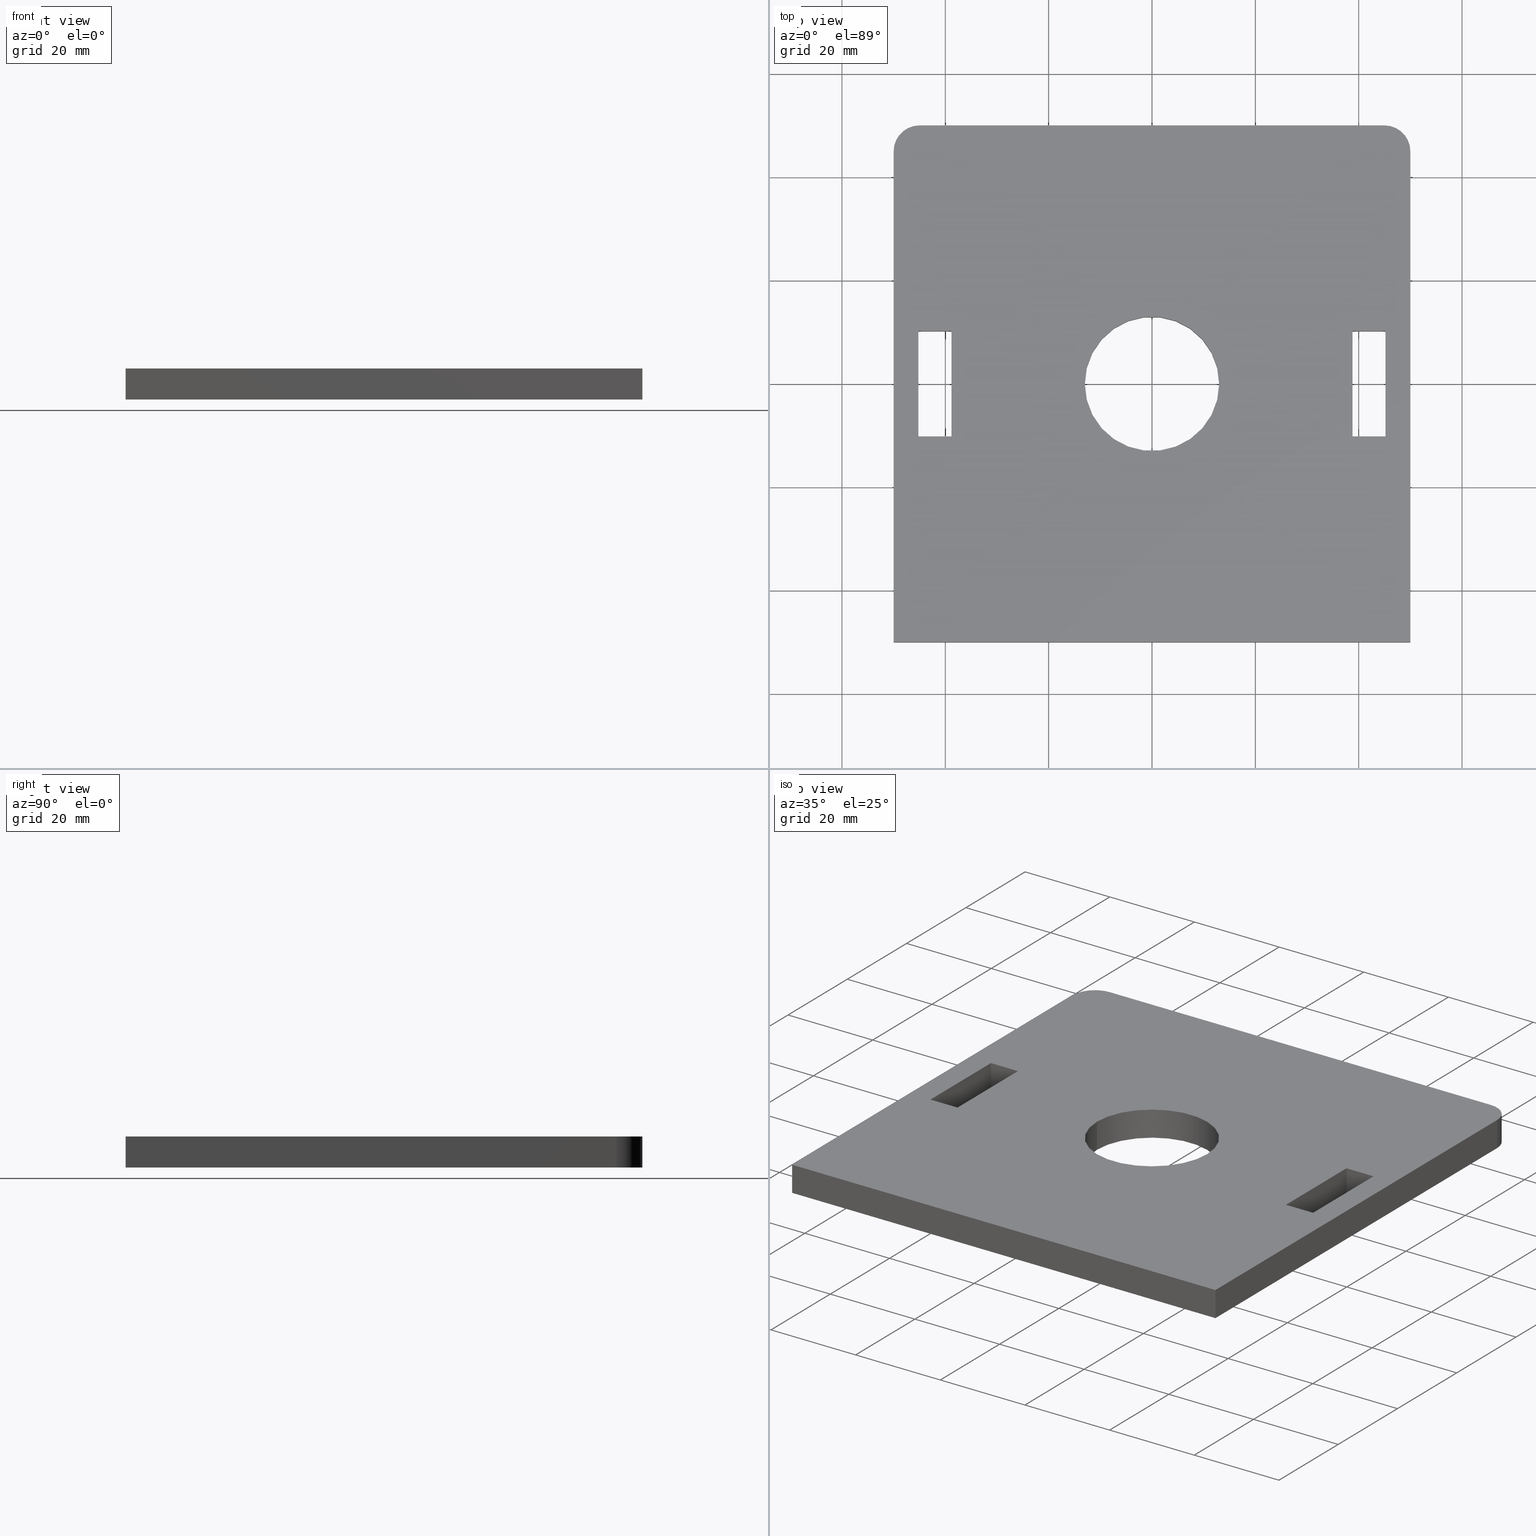
[diagram: canonical four-view strip — front | top / right | iso, engineering-drawing reading convention]
A machine part, canonical four-view strip (front | top / right | iso — engineering-drawing reading convention). The complete STEP part file that produces these views, byte-faithful:
ISO-10303-21;
HEADER;
FILE_DESCRIPTION (( 'STEP AP203' ),
    '1' );
FILE_NAME ('3997-30-15_REV_.step',
    '2026-02-22T23:23:17',
    ( '' ),
    ( '' ),
    'SwSTEP 2.0',
    'SolidWorks 2025',
    '' );
FILE_SCHEMA (( 'CONFIG_CONTROL_DESIGN' ));
ENDSEC;

DATA;
#1 = DIRECTION ( 'NONE',  ( 0.000000000000000000, 0.000000000000000000, -1.000000000000000000 ) ) ;
#2 = EDGE_LOOP ( 'NONE', ( #333, #246, #160, #266 ) ) ;
#3 = VECTOR ( 'NONE', #184, 1000.000000000000000 ) ;
#4 = VECTOR ( 'NONE', #283, 1000.000000000000000 ) ;
#5 = LINE ( 'NONE', #496, #569 ) ;
#6 = CARTESIAN_POINT ( 'NONE',  ( 45.20000000000018758, 10.20000000000043094, -6.000000000000116351 ) ) ;
#7 = ORIENTED_EDGE ( 'NONE', *, *, #529, .F. ) ;
#8 = CARTESIAN_POINT ( 'NONE',  ( 50.00000000000046185, 45.00000000000093081, -6.000000000000005329 ) ) ;
#9 = EDGE_LOOP ( 'NONE', ( #393, #513 ) ) ;
#10 = EDGE_CURVE ( 'NONE', #30, #306, #114, .T. ) ;
#11 = CARTESIAN_POINT ( 'NONE',  ( 50.00000000000065370, -50.00000000000027001, -6.000000000000338396 ) ) ;
#12 = EDGE_LOOP ( 'NONE', ( #96, #204, #353, #172, #584, #533 ) ) ;
#13 = DIRECTION ( 'NONE',  ( 0.000000000000000000, 0.000000000000000000, 1.000000000000000000 ) ) ;
#14 = LOCAL_TIME ( 10, 23, 17.00000000000000000, #653 ) ;
#15 = ORIENTED_EDGE ( 'NONE', *, *, #343, .F. ) ;
#16 = EDGE_CURVE ( 'NONE', #626, #636, #90, .T. ) ;
#17 = PLANE ( 'NONE',  #579 ) ;
#18 = ORIENTED_EDGE ( 'NONE', *, *, #117, .T. ) ;
#19 = DIRECTION ( 'NONE',  ( -1.805559322863035323E-34, -1.000000000000000000, 1.232595164407830946E-32 ) ) ;
#20 = ADVANCED_FACE ( 'NONE', ( #125 ), #224, .T. ) ;
#21 = ORIENTED_EDGE ( 'NONE', *, *, #275, .F. ) ;
#22 = DIRECTION ( 'NONE',  ( -1.000000000000000000, -1.805559322863033398E-34, -1.540743955509788682E-33 ) ) ;
#23 = VECTOR ( 'NONE', #253, 1000.000000000000000 ) ;
#24 = EDGE_LOOP ( 'NONE', ( #631, #589, #504, #628, #438, #395 ) ) ;
#25 = FACE_OUTER_BOUND ( 'NONE', #285, .T. ) ;
#26 = DIRECTION ( 'NONE',  ( 0.000000000000000000, 0.000000000000000000, 1.000000000000000000 ) ) ;
#27 = EDGE_CURVE ( 'NONE', #234, #462, #167, .T. ) ;
#28 = DIRECTION ( 'NONE',  ( -1.000000000000000000, -1.805559322863033398E-34, -1.540743955509788682E-33 ) ) ;
#29 = DIRECTION ( 'NONE',  ( 0.000000000000000000, 0.000000000000000000, 1.000000000000000000 ) ) ;
#30 = VERTEX_POINT ( 'NONE', #287 ) ;
#31 = CARTESIAN_POINT ( 'NONE',  ( 38.80000000000099902, 10.20000000000043094, 11.99999999999901235 ) ) ;
#32 = DIRECTION ( 'NONE',  ( 1.805559322863035323E-34, 1.000000000000000000, -0.000000000000000000 ) ) ;
#33 = VECTOR ( 'NONE', #319, 1000.000000000000000 ) ;
#34 = VECTOR ( 'NONE', #48, 1000.000000000000000 ) ;
#35 = ORIENTED_EDGE ( 'NONE', *, *, #165, .F. ) ;
#36 = DIRECTION ( 'NONE',  ( -1.000000000000000000, -1.805559322863033398E-34, 0.000000000000000000 ) ) ;
#37 = ADVANCED_FACE ( 'NONE', ( #578 ), #177, .T. ) ;
#38 = CARTESIAN_POINT ( 'NONE',  ( 13.00000000000000178, 2.347227119721943696E-33, -6.000000000000227374 ) ) ;
#39 = EDGE_LOOP ( 'NONE', ( #555, #389, #288, #156 ) ) ;
#40 = PERSON_AND_ORGANIZATION ( #376, #337 ) ;
#41 = CARTESIAN_POINT ( 'NONE',  ( 5.559246639419423985E-14, 10.19999999999998685, -6.000000000000227374 ) ) ;
#42 = EDGE_LOOP ( 'NONE', ( #436, #498, #62, #611 ) ) ;
#43 = PERSON_AND_ORGANIZATION ( #376, #337 ) ;
#44 = DIRECTION ( 'NONE',  ( 1.805559322863033398E-34, -1.000000000000000000, 1.232595164407830946E-32 ) ) ;
#45 = ORIENTED_EDGE ( 'NONE', *, *, #47, .T. ) ;
#46 = AXIS2_PLACEMENT_3D ( 'NONE', #360, #309, #458 ) ;
#47 = EDGE_CURVE ( 'NONE', #197, #599, #535, .T. ) ;
#48 = DIRECTION ( 'NONE',  ( -1.805559322863035323E-34, -1.000000000000000000, 1.232595164407830946E-32 ) ) ;
#49 = CARTESIAN_POINT ( 'NONE',  ( -45.19999999999968310, -10.20000000000020890, 11.99999999999990052 ) ) ;
#50 = VERTEX_POINT ( 'NONE', #586 ) ;
#51 = EDGE_CURVE ( 'NONE', #511, #636, #86, .T. ) ;
#52 = PERSON_AND_ORGANIZATION_ROLE ( 'creator' ) ;
#53 = CARTESIAN_POINT ( 'NONE',  ( 38.80000000000000426, -10.19999999999998685, -5.999999999999894307 ) ) ;
#54 = VERTEX_POINT ( 'NONE', #179 ) ;
#55 = PERSON_AND_ORGANIZATION ( #376, #337 ) ;
#56 = LINE ( 'NONE', #304, #33 ) ;
#57 = ORIENTED_EDGE ( 'NONE', *, *, #577, .T. ) ;
#58 = VECTOR ( 'NONE', #598, 1000.000000000000000 ) ;
#59 = LOCAL_TIME ( 10, 23, 17.00000000000000000, #201 ) ;
#60 = LINE ( 'NONE', #546, #387 ) ;
#61 = ADVANCED_FACE ( 'NONE', ( #382 ), #434, .T. ) ;
#62 = ORIENTED_EDGE ( 'NONE', *, *, #16, .T. ) ;
#63 = DIRECTION ( 'NONE',  ( 0.000000000000000000, 0.000000000000000000, 1.000000000000000000 ) ) ;
#64 = ORIENTED_EDGE ( 'NONE', *, *, #366, .F. ) ;
#65 = CARTESIAN_POINT ( 'NONE',  ( 38.80000000000041638, 10.20000000000065299, -5.551115123125782702E-13 ) ) ;
#66 = ORIENTED_EDGE ( 'NONE', *, *, #493, .F. ) ;
#67 = EDGE_CURVE ( 'NONE', #386, #566, #277, .T. ) ;
#68 = AXIS2_PLACEMENT_3D ( 'NONE', #499, #44, #402 ) ;
#69 = VECTOR ( 'NONE', #176, 1000.000000000000000 ) ;
#70 = DIRECTION ( 'NONE',  ( -1.000000000000000000, 0.000000000000000000, 0.000000000000000000 ) ) ;
#71 = EDGE_LOOP ( 'NONE', ( #150, #133, #547, #7 ) ) ;
#72 = FACE_OUTER_BOUND ( 'NONE', #39, .T. ) ;
#73 = ORIENTED_EDGE ( 'NONE', *, *, #221, .T. ) ;
#74 = CARTESIAN_POINT ( 'NONE',  ( -38.79999999999977689, 10.20000000000009877, 11.99999999999923261 ) ) ;
#75 = ORIENTED_EDGE ( 'NONE', *, *, #493, .T. ) ;
#76 = CARTESIAN_POINT ( 'NONE',  ( 45.20000000000051443, -10.20000000000043094, 11.99999999999901235 ) ) ;
#77 = AXIS2_PLACEMENT_3D ( 'NONE', #521, #313, #63 ) ;
#78 = AXIS2_PLACEMENT_3D ( 'NONE', #85, #273, #22 ) ;
#79 = CARTESIAN_POINT ( 'NONE',  ( -38.79999999999989058, 10.19999999999976481, -3.339342691255353657E-13 ) ) ;
#80 = EDGE_CURVE ( 'NONE', #93, #234, #532, .T. ) ;
#81 = FACE_BOUND ( 'NONE', #2, .T. ) ;
#82 = CARTESIAN_POINT ( 'NONE',  ( -44.99999999999970868, 45.00000000000004263, -6.000000000000560441 ) ) ;
#83 = CC_DESIGN_PERSON_AND_ORGANIZATION_ASSIGNMENT ( #205, #401, ( #420 ) ) ;
#84 = EDGE_LOOP ( 'NONE', ( #573, #258, #563, #651 ) ) ;
#85 = CARTESIAN_POINT ( 'NONE',  ( -38.79999999999977689, 10.20000000000009877, 11.99999999999923261 ) ) ;
#86 = LINE ( 'NONE', #38, #294 ) ;
#87 = ADVANCED_FACE ( 'NONE', ( #477 ), #138, .F. ) ;
#88 = LINE ( 'NONE', #381, #4 ) ;
#89 = DIRECTION ( 'NONE',  ( 1.000000000000000000, 1.805559322863033398E-34, 1.540743955509788682E-33 ) ) ;
#90 = CIRCLE ( 'NONE', #323, 13.00000000000000178 ) ;
#91 = EDGE_LOOP ( 'NONE', ( #464, #648, #250, #111 ) ) ;
#92 = CARTESIAN_POINT ( 'NONE',  ( -38.79999999999939320, -10.19999999999976481, -5.999999999999672262 ) ) ;
#93 = VERTEX_POINT ( 'NONE', #229 ) ;
#94 = COORDINATED_UNIVERSAL_TIME_OFFSET ( 10, 0, .AHEAD. ) ;
#95 = CARTESIAN_POINT ( 'NONE',  ( -49.99999999999965894, -50.00000000000071054, -5.999999999999561240 ) ) ;
#96 = ORIENTED_EDGE ( 'NONE', *, *, #10, .T. ) ;
#97 = CARTESIAN_POINT ( 'NONE',  ( 0.000000000000000000, 0.000000000000000000, 0.000000000000000000 ) ) ;
#98 = CARTESIAN_POINT ( 'NONE',  ( -38.79999999999983373, -10.19999999999987494, 11.99999999999923261 ) ) ;
#99 = EDGE_CURVE ( 'NONE', #306, #153, #335, .T. ) ;
#100 = EDGE_LOOP ( 'NONE', ( #15, #487, #45, #644 ) ) ;
#101 = AXIS2_PLACEMENT_3D ( 'NONE', #460, #13, #310 ) ;
#102 = AXIS2_PLACEMENT_3D ( 'NONE', #97, #244, #236 ) ;
#103 =( NAMED_UNIT ( * ) SI_UNIT ( $, .STERADIAN. ) SOLID_ANGLE_UNIT ( ) );
#104 = LINE ( 'NONE', #293, #112 ) ;
#105 = VERTEX_POINT ( 'NONE', #128 ) ;
#106 = APPROVAL_ROLE ( '' ) ;
#107 = CARTESIAN_POINT ( 'NONE',  ( 0.000000000000000000, 0.000000000000000000, 0.000000000000000000 ) ) ;
#108 = ORIENTED_EDGE ( 'NONE', *, *, #27, .T. ) ;
#109 = EDGE_CURVE ( 'NONE', #281, #599, #322, .T. ) ;
#110 = DIRECTION ( 'NONE',  ( 1.000000000000000000, 1.805559322863033398E-34, 1.540743955509788682E-33 ) ) ;
#111 = ORIENTED_EDGE ( 'NONE', *, *, #602, .T. ) ;
#112 = VECTOR ( 'NONE', #497, 1000.000000000000000 ) ;
#113 = CARTESIAN_POINT ( 'NONE',  ( -50.00000000000009948, 45.00000000000070344, -5.999999999999561240 ) ) ;
#114 = LINE ( 'NONE', #416, #231 ) ;
#115 = LINE ( 'NONE', #358, #506 ) ;
#116 = VERTEX_POINT ( 'NONE', #79 ) ;
#117 = EDGE_CURVE ( 'NONE', #519, #478, #528, .T. ) ;
#118 = CARTESIAN_POINT ( 'NONE',  ( 38.80000000000055849, -10.20000000000020890, 11.99999999999978861 ) ) ;
#119 = ORIENTED_EDGE ( 'NONE', *, *, #80, .F. ) ;
#120 = VECTOR ( 'NONE', #550, 1000.000000000000000 ) ;
#121 = AXIS2_PLACEMENT_3D ( 'NONE', #76, #36, #629 ) ;
#122 = DIRECTION ( 'NONE',  ( 0.000000000000000000, 0.000000000000000000, 1.000000000000000000 ) ) ;
#123 = ORIENTED_EDGE ( 'NONE', *, *, #213, .F. ) ;
#124 = DIRECTION ( 'NONE',  ( 1.805559322863035323E-34, 1.000000000000000000, -1.232595164407830946E-32 ) ) ;
#125 = FACE_OUTER_BOUND ( 'NONE', #409, .T. ) ;
#126 = ADVANCED_FACE ( 'NONE', ( #474 ), #489, .T. ) ;
#127 = PLANE ( 'NONE',  #121 ) ;
#128 = CARTESIAN_POINT ( 'NONE',  ( 38.80000000000041638, 10.20000000000065299, -5.551115123125782702E-13 ) ) ;
#129 = FACE_OUTER_BOUND ( 'NONE', #560, .T. ) ;
#130 = VECTOR ( 'NONE', #190, 1000.000000000000000 ) ;
#131 = AXIS2_PLACEMENT_3D ( 'NONE', #31, #433, #379 ) ;
#132 = DIRECTION ( 'NONE',  ( 0.000000000000000000, 0.000000000000000000, 1.000000000000000000 ) ) ;
#133 = ORIENTED_EDGE ( 'NONE', *, *, #642, .F. ) ;
#134 = DIRECTION ( 'NONE',  ( 1.000000000000000000, 1.805559322863033398E-34, 0.000000000000000000 ) ) ;
#135 = CARTESIAN_POINT ( 'NONE',  ( 5.559246639419423985E-14, 10.19999999999998685, -6.000000000000227374 ) ) ;
#136 = ADVANCED_FACE ( 'NONE', ( #427 ), #425, .T. ) ;
#137 = DIRECTION ( 'NONE',  ( 1.540743955509788682E-33, 2.781904613015565710E-67, -1.000000000000000000 ) ) ;
#138 = CYLINDRICAL_SURFACE ( 'NONE', #536, 13.00000000000000178 ) ;
#139 = EDGE_LOOP ( 'NONE', ( #269, #351, #318, #551 ) ) ;
#140 = CC_DESIGN_DATE_AND_TIME_ASSIGNMENT ( #541, #396, ( #300 ) ) ;
#141 = DIRECTION ( 'NONE',  ( -1.000000000000000000, -1.805559322863033398E-34, -1.540743955509788682E-33 ) ) ;
#142 = CARTESIAN_POINT ( 'NONE',  ( -49.99999999999965894, -50.00000000000071054, -5.999999999999561240 ) ) ;
#143 = VECTOR ( 'NONE', #268, 1000.000000000000000 ) ;
#144 = APPROVAL_PERSON_ORGANIZATION ( #363, #607, #214 ) ;
#145 = APPROVAL_STATUS ( 'not_yet_approved' ) ;
#146 = CARTESIAN_POINT ( 'NONE',  ( 38.80000000000028137, 2.220446049250313081E-13, -6.000000000000560441 ) ) ;
#147 = DATE_AND_TIME ( #597, #242 ) ;
#148 = EDGE_CURVE ( 'NONE', #50, #540, #380, .T. ) ;
#149 = DIRECTION ( 'NONE',  ( -1.805559322863035323E-34, -1.000000000000000000, 1.232595164407830946E-32 ) ) ;
#150 = ORIENTED_EDGE ( 'NONE', *, *, #459, .F. ) ;
#151 = DIRECTION ( 'NONE',  ( 0.000000000000000000, 0.000000000000000000, 1.000000000000000000 ) ) ;
#152 = VECTOR ( 'NONE', #89, 1000.000000000000000 ) ;
#153 = VERTEX_POINT ( 'NONE', #329 ) ;
#154 = APPROVAL_STATUS ( 'not_yet_approved' ) ;
#155 = LINE ( 'NONE', #447, #120 ) ;
#156 = ORIENTED_EDGE ( 'NONE', *, *, #183, .F. ) ;
#157 = EDGE_CURVE ( 'NONE', #519, #442, #235, .T. ) ;
#158 = CARTESIAN_POINT ( 'NONE',  ( 13.00000000000000178, 2.347227119721943696E-33, 2.002967142162725561E-32 ) ) ;
#159 = DIRECTION ( 'NONE',  ( 0.000000000000000000, 0.000000000000000000, -1.000000000000000000 ) ) ;
#160 = ORIENTED_EDGE ( 'NONE', *, *, #423, .T. ) ;
#161 = CARTESIAN_POINT ( 'NONE',  ( -45.19999999999968310, -10.20000000000020890, 11.99999999999990052 ) ) ;
#162 = VERTEX_POINT ( 'NONE', #92 ) ;
#163 = VECTOR ( 'NONE', #559, 1000.000000000000000 ) ;
#164 = PRODUCT_DEFINITION_SHAPE ( 'NONE', 'NONE',  #300 ) ;
#165 = EDGE_CURVE ( 'NONE', #580, #442, #543, .T. ) ;
#166 = LINE ( 'NONE', #113, #163 ) ;
#167 = LINE ( 'NONE', #41, #483 ) ;
#168 = FACE_OUTER_BOUND ( 'NONE', #24, .T. ) ;
#169 = ORIENTED_EDGE ( 'NONE', *, *, #529, .T. ) ;
#170 = MANIFOLD_SOLID_BREP ( 'Fillet1', #397 ) ;
#171 = CARTESIAN_POINT ( 'NONE',  ( -38.80000000000005400, -10.19999999999987494, -2.220446049250313081E-13 ) ) ;
#172 = ORIENTED_EDGE ( 'NONE', *, *, #501, .T. ) ;
#173 = VECTOR ( 'NONE', #588, 1000.000000000000000 ) ;
#174 = DIRECTION ( 'NONE',  ( 1.000000000000000000, 1.805559322863033398E-34, 1.540743955509788682E-33 ) ) ;
#175 = DIRECTION ( 'NONE',  ( 0.000000000000000000, 0.000000000000000000, 1.000000000000000000 ) ) ;
#176 = DIRECTION ( 'NONE',  ( -1.805559322863035323E-34, -1.000000000000000000, 1.232595164407830946E-32 ) ) ;
#177 = CYLINDRICAL_SURFACE ( 'NONE', #548, 4.999999999999997335 ) ;
#178 = FACE_OUTER_BOUND ( 'NONE', #139, .T. ) ;
#179 = CARTESIAN_POINT ( 'NONE',  ( -13.00000000000000178, 1.592040838891559293E-15, -6.000000000000227374 ) ) ;
#180 = AXIS2_PLACEMENT_3D ( 'NONE', #486, #630, #634 ) ;
#181 = DIRECTION ( 'NONE',  ( 0.000000000000000000, 0.000000000000000000, 1.000000000000000000 ) ) ;
#182 = CIRCLE ( 'NONE', #254, 13.00000000000000178 ) ;
#183 = EDGE_CURVE ( 'NONE', #516, #162, #554, .T. ) ;
#184 = DIRECTION ( 'NONE',  ( 0.000000000000000000, 0.000000000000000000, -1.000000000000000000 ) ) ;
#185 = CARTESIAN_POINT ( 'NONE',  ( 50.00000000000065370, -50.00000000000027001, -6.000000000000338396 ) ) ;
#186 = DIRECTION ( 'NONE',  ( -0.000000000000000000, -0.000000000000000000, 1.000000000000000000 ) ) ;
#187 = APPROVAL ( #145, 'UNSPECIFIED' ) ;
#188 = CARTESIAN_POINT ( 'NONE',  ( -49.99999999999965894, 45.00000000000070344, -8.881784197001252323E-13 ) ) ;
#189 = CARTESIAN_POINT ( 'NONE',  ( 45.00000000000109424, 44.99999999999992895, -1.110223024625156540E-13 ) ) ;
#190 = DIRECTION ( 'NONE',  ( 1.805559322863035323E-34, 1.000000000000000000, -1.232595164407830946E-32 ) ) ;
#191 = VECTOR ( 'NONE', #413, 1000.000000000000000 ) ;
#192 = LOCAL_TIME ( 10, 23, 17.00000000000000000, #94 ) ;
#193 = ORIENTED_EDGE ( 'NONE', *, *, #357, .F. ) ;
#194 = EDGE_CURVE ( 'NONE', #162, #50, #451, .T. ) ;
#195 = SECURITY_CLASSIFICATION_LEVEL ( 'unclassified' ) ;
#196 = DIRECTION ( 'NONE',  ( 1.000000000000000000, 1.805559322863033398E-34, 1.540743955509788682E-33 ) ) ;
#197 = VERTEX_POINT ( 'NONE', #257 ) ;
#198 = APPROVAL ( #154, 'UNSPECIFIED' ) ;
#199 = CARTESIAN_POINT ( 'NONE',  ( -45.19999999999957652, 10.19999999999965468, -5.551115123125782702E-13 ) ) ;
#200 = VERTEX_POINT ( 'NONE', #606 ) ;
#201 = COORDINATED_UNIVERSAL_TIME_OFFSET ( 10, 0, .AHEAD. ) ;
#202 = LINE ( 'NONE', #49, #272 ) ;
#203 = EDGE_CURVE ( 'NONE', #462, #281, #392, .T. ) ;
#204 = ORIENTED_EDGE ( 'NONE', *, *, #99, .T. ) ;
#205 = PERSON_AND_ORGANIZATION ( #376, #337 ) ;
#206 = PLANE ( 'NONE',  #68 ) ;
#207 = ORIENTED_EDGE ( 'NONE', *, *, #443, .F. ) ;
#208 = CARTESIAN_POINT ( 'NONE',  ( 38.80000000000066507, -10.20000000000031903, -5.551115123125782702E-13 ) ) ;
#209 = ORIENTED_EDGE ( 'NONE', *, *, #47, .F. ) ;
#210 = DIRECTION ( 'NONE',  ( 1.805559322863035323E-34, 1.000000000000000000, -1.232595164407830946E-32 ) ) ;
#211 = VERTEX_POINT ( 'NONE', #290 ) ;
#212 = VECTOR ( 'NONE', #28, 1000.000000000000000 ) ;
#213 = EDGE_CURVE ( 'NONE', #442, #30, #60, .T. ) ;
#214 = APPROVAL_ROLE ( '' ) ;
#215 = CARTESIAN_POINT ( 'NONE',  ( -49.99999999999993605, -50.00000000000049027, -4.440892098500626162E-13 ) ) ;
#216 = ORIENTED_EDGE ( 'NONE', *, *, #623, .T. ) ;
#217 = CARTESIAN_POINT ( 'NONE',  ( 8.131516293641283255E-17, 0.000000000000000000, -6.000000000000227374 ) ) ;
#218 = ORIENTED_EDGE ( 'NONE', *, *, #308, .F. ) ;
#219 = DIRECTION ( 'NONE',  ( 0.000000000000000000, 0.000000000000000000, 1.000000000000000000 ) ) ;
#220 = DIRECTION ( 'NONE',  ( 1.805559322863035323E-34, 1.000000000000000000, -1.232595164407830946E-32 ) ) ;
#221 = EDGE_CURVE ( 'NONE', #478, #30, #155, .T. ) ;
#222 = VECTOR ( 'NONE', #110, 1000.000000000000000 ) ;
#223 = LINE ( 'NONE', #476, #69 ) ;
#224 = PLANE ( 'NONE',  #46 ) ;
#225 = CARTESIAN_POINT ( 'NONE',  ( -45.19999999999996021, 10.19999999999987494, -5.999999999999894307 ) ) ;
#226 = DIRECTION ( 'NONE',  ( 0.000000000000000000, 0.000000000000000000, 1.000000000000000000 ) ) ;
#227 = EDGE_CURVE ( 'NONE', #386, #162, #355, .T. ) ;
#228 = FACE_BOUND ( 'NONE', #414, .T. ) ;
#229 = CARTESIAN_POINT ( 'NONE',  ( 45.20000000000071338, 10.19999999999998685, -9.992007221626408864E-13 ) ) ;
#230 = ORIENTED_EDGE ( 'NONE', *, *, #649, .T. ) ;
#231 = VECTOR ( 'NONE', #220, 1000.000000000000000 ) ;
#232 = CARTESIAN_POINT ( 'NONE',  ( -45.19999999999973994, -10.20000000000031903, -6.000000000000782485 ) ) ;
#233 = CARTESIAN_POINT ( 'NONE',  ( -45.19999999999968310, -10.20000000000031903, -9.992007221626408864E-13 ) ) ;
#234 = VERTEX_POINT ( 'NONE', #6 ) ;
#235 = LINE ( 'NONE', #142, #461 ) ;
#236 = DIRECTION ( 'NONE',  ( 1.000000000000000000, 0.000000000000000000, 0.000000000000000000 ) ) ;
#237 = CARTESIAN_POINT ( 'NONE',  ( 45.20000000000051443, -10.20000000000043094, 11.99999999999901235 ) ) ;
#238 = EDGE_CURVE ( 'NONE', #636, #626, #182, .T. ) ;
#239 = DATE_AND_TIME ( #289, #192 ) ;
#240 = CARTESIAN_POINT ( 'NONE',  ( 50.00000000000018474, 45.00000000000070344, -5.551115123125782702E-13 ) ) ;
#241 = AXIS2_PLACEMENT_3D ( 'NONE', #455, #565, #70 ) ;
#242 = LOCAL_TIME ( 10, 23, 17.00000000000000000, #391 ) ;
#243 = ORIENTED_EDGE ( 'NONE', *, *, #51, .T. ) ;
#244 = DIRECTION ( 'NONE',  ( 0.000000000000000000, 0.000000000000000000, 1.000000000000000000 ) ) ;
#245 = DIRECTION ( 'NONE',  ( 0.000000000000000000, 0.000000000000000000, 1.000000000000000000 ) ) ;
#246 = ORIENTED_EDGE ( 'NONE', *, *, #67, .T. ) ;
#247 = EDGE_CURVE ( 'NONE', #105, #462, #650, .T. ) ;
#248 = CALENDAR_DATE ( 2026, 23, 2 ) ;
#249 = CARTESIAN_POINT ( 'NONE',  ( 45.20000000000071338, 10.19999999999998685, -9.992007221626408864E-13 ) ) ;
#250 = ORIENTED_EDGE ( 'NONE', *, *, #148, .T. ) ;
#251 = PERSON_AND_ORGANIZATION_ROLE ( 'creator' ) ;
#252 = CC_DESIGN_DATE_AND_TIME_ASSIGNMENT ( #147, #609, ( #420 ) ) ;
#253 = DIRECTION ( 'NONE',  ( -1.805559322863035323E-34, -1.000000000000000000, 1.232595164407830946E-32 ) ) ;
#254 = AXIS2_PLACEMENT_3D ( 'NONE', #107, #151, #643 ) ;
#255 = ORIENTED_EDGE ( 'NONE', *, *, #227, .F. ) ;
#256 = APPROVAL_DATE_TIME ( #411, #607 ) ;
#257 = CARTESIAN_POINT ( 'NONE',  ( 45.20000000000054285, -10.19999999999987494, -1.000068083900629290E-12 ) ) ;
#258 = ORIENTED_EDGE ( 'NONE', *, *, #383, .F. ) ;
#259 = CARTESIAN_POINT ( 'NONE',  ( 38.80000000000053006, 10.20000000000031903, -5.999999999999672262 ) ) ;
#260 = ORIENTED_EDGE ( 'NONE', *, *, #203, .T. ) ;
#261 = ADVANCED_FACE ( 'NONE', ( #388 ), #206, .T. ) ;
#262 = FACE_BOUND ( 'NONE', #9, .T. ) ;
#263 = VECTOR ( 'NONE', #507, 1000.000000000000000 ) ;
#264 = AXIS2_PLACEMENT_3D ( 'NONE', #468, #328, #276 ) ;
#265 = FACE_OUTER_BOUND ( 'NONE', #278, .T. ) ;
#266 = ORIENTED_EDGE ( 'NONE', *, *, #267, .T. ) ;
#267 = EDGE_CURVE ( 'NONE', #320, #116, #342, .T. ) ;
#268 = DIRECTION ( 'NONE',  ( 0.000000000000000000, 0.000000000000000000, -1.000000000000000000 ) ) ;
#269 = ORIENTED_EDGE ( 'NONE', *, *, #247, .F. ) ;
#270 = CARTESIAN_POINT ( 'NONE',  ( -49.99999999999965894, -50.00000000000071054, -5.999999999999561240 ) ) ;
#271 = ORIENTED_EDGE ( 'NONE', *, *, #592, .F. ) ;
#272 = VECTOR ( 'NONE', #159, 1000.000000000000000 ) ;
#273 = DIRECTION ( 'NONE',  ( 1.805559322863033398E-34, -1.000000000000000000, 1.232595164407830946E-32 ) ) ;
#274 = CARTESIAN_POINT ( 'NONE',  ( -50.00000000000027001, 49.99999999999982236, -6.000000000001226574 ) ) ;
#275 = EDGE_CURVE ( 'NONE', #320, #540, #104, .T. ) ;
#276 = DIRECTION ( 'NONE',  ( -1.000000000000000000, -3.358424649491100554E-13, 0.000000000000000000 ) ) ;
#277 = LINE ( 'NONE', #233, #408 ) ;
#278 = EDGE_LOOP ( 'NONE', ( #64, #330, #243, #494 ) ) ;
#279 = CARTESIAN_POINT ( 'NONE',  ( 13.00000000000000178, 2.347227119721943696E-33, -6.000000000000227374 ) ) ;
#280 = CARTESIAN_POINT ( 'NONE',  ( 8.131516293641283255E-17, 0.000000000000000000, -6.000000000000227374 ) ) ;
#281 = VERTEX_POINT ( 'NONE', #53 ) ;
#282 = VECTOR ( 'NONE', #210, 1000.000000000000000 ) ;
#283 = DIRECTION ( 'NONE',  ( 1.805559322863035323E-34, 1.000000000000000000, -1.232595164407830946E-32 ) ) ;
#284 = CARTESIAN_POINT ( 'NONE',  ( -38.79999999999983373, -10.19999999999987494, 11.99999999999923261 ) ) ;
#285 = EDGE_LOOP ( 'NONE', ( #207, #608, #454, #448 ) ) ;
#286 = EDGE_CURVE ( 'NONE', #54, #511, #429, .T. ) ;
#287 = CARTESIAN_POINT ( 'NONE',  ( 50.00000000000065370, -50.00000000000027001, -9.992007221626408864E-13 ) ) ;
#288 = ORIENTED_EDGE ( 'NONE', *, *, #227, .T. ) ;
#289 = CALENDAR_DATE ( 2026, 23, 2 ) ;
#290 = CARTESIAN_POINT ( 'NONE',  ( -44.99999999999987210, 50.00000000000059686, -3.330669073875469621E-13 ) ) ;
#291 = ORIENTED_EDGE ( 'NONE', *, *, #157, .T. ) ;
#292 = LINE ( 'NONE', #600, #34 ) ;
#293 = CARTESIAN_POINT ( 'NONE',  ( -45.19999999999934914, 10.20000000000009877, 11.99999999999923261 ) ) ;
#294 = VECTOR ( 'NONE', #132, 1000.000000000000000 ) ;
#295 = ORIENTED_EDGE ( 'NONE', *, *, #311, .T. ) ;
#296 = ADVANCED_FACE ( 'NONE', ( #610 ), #352, .T. ) ;
#297 = APPROVAL_DATE_TIME ( #549, #187 ) ;
#298 = DIRECTION ( 'NONE',  ( 0.000000000000000000, 0.000000000000000000, -1.000000000000000000 ) ) ;
#299 = ORIENTED_EDGE ( 'NONE', *, *, #194, .F. ) ;
#300 = PRODUCT_DEFINITION ( 'UNKNOWN', '', #440, #564 ) ;
#301 = PERSON_AND_ORGANIZATION_ROLE ( 'design_owner' ) ;
#302 = CARTESIAN_POINT ( 'NONE',  ( -44.99999999999976552, 50.00000000000071054, -6.000000000001004530 ) ) ;
#303 = ORIENTED_EDGE ( 'NONE', *, *, #80, .T. ) ;
#304 = CARTESIAN_POINT ( 'NONE',  ( -49.99999999999970868, 49.99999999999993605, -1.110223024625156540E-13 ) ) ;
#305 = AXIS2_PLACEMENT_3D ( 'NONE', #510, #219, #624 ) ;
#306 = VERTEX_POINT ( 'NONE', #240 ) ;
#307 = DIRECTION ( 'NONE',  ( 0.000000000000000000, 0.000000000000000000, -1.000000000000000000 ) ) ;
#308 = EDGE_CURVE ( 'NONE', #105, #93, #647, .T. ) ;
#309 = DIRECTION ( 'NONE',  ( 1.000000000000000000, 1.805559322863033398E-34, 0.000000000000000000 ) ) ;
#310 = DIRECTION ( 'NONE',  ( 1.000000000000000000, 1.805559322863033398E-34, 0.000000000000000000 ) ) ;
#311 = EDGE_CURVE ( 'NONE', #566, #516, #202, .T. ) ;
#312 = ORIENTED_EDGE ( 'NONE', *, *, #308, .T. ) ;
#313 = DIRECTION ( 'NONE',  ( -1.000000000000000000, -1.805559322863033398E-34, 0.000000000000000000 ) ) ;
#314 = ORIENTED_EDGE ( 'NONE', *, *, #247, .T. ) ;
#315 = AXIS2_PLACEMENT_3D ( 'NONE', #284, #481, #226 ) ;
#316 = EDGE_CURVE ( 'NONE', #618, #211, #556, .T. ) ;
#317 = FACE_OUTER_BOUND ( 'NONE', #406, .T. ) ;
#318 = ORIENTED_EDGE ( 'NONE', *, *, #343, .T. ) ;
#319 = DIRECTION ( 'NONE',  ( -1.000000000000000000, -1.805559322863033398E-34, -1.540743955509788682E-33 ) ) ;
#320 = VERTEX_POINT ( 'NONE', #199 ) ;
#321 = DIRECTION ( 'NONE',  ( 1.000000000000000000, 0.000000000000000000, 0.000000000000000000 ) ) ;
#322 = LINE ( 'NONE', #525, #635 ) ;
#323 = AXIS2_PLACEMENT_3D ( 'NONE', #418, #175, #371 ) ;
#324 = LINE ( 'NONE', #426, #212 ) ;
#325 = DIRECTION ( 'NONE',  ( 1.000000000000000000, 1.805559322863033398E-34, 1.540743955509788682E-33 ) ) ;
#326 = EDGE_CURVE ( 'NONE', #153, #211, #56, .T. ) ;
#327 = ORIENTED_EDGE ( 'NONE', *, *, #16, .F. ) ;
#328 = DIRECTION ( 'NONE',  ( -0.000000000000000000, -0.000000000000000000, 1.000000000000000000 ) ) ;
#329 = CARTESIAN_POINT ( 'NONE',  ( 45.00000000000093081, 49.99999999999970868, -3.330669073875469621E-13 ) ) ;
#330 = ORIENTED_EDGE ( 'NONE', *, *, #404, .F. ) ;
#331 = DIRECTION ( 'NONE',  ( -1.000000000000000000, -1.805559322863033398E-34, -1.540743955509788682E-33 ) ) ;
#332 = DIRECTION ( 'NONE',  ( 0.000000000000000000, 0.000000000000000000, 1.000000000000000000 ) ) ;
#333 = ORIENTED_EDGE ( 'NONE', *, *, #592, .T. ) ;
#334 = ADVANCED_FACE ( 'NONE', ( #72 ), #417, .T. ) ;
#335 = CIRCLE ( 'NONE', #419, 4.999999999999997335 ) ;
#336 = PLANE ( 'NONE',  #625 ) ;
#337 = ORGANIZATION ( 'UNSPECIFIED', 'UNSPECIFIED', '' ) ;
#338 = DIRECTION ( 'NONE',  ( 1.000000000000000000, 0.000000000000000000, 0.000000000000000000 ) ) ;
#339 = ORIENTED_EDGE ( 'NONE', *, *, #10, .F. ) ;
#340 = CALENDAR_DATE ( 2026, 23, 2 ) ;
#341 = DIRECTION ( 'NONE',  ( 1.000000000000000000, 1.805559322863033398E-34, 0.000000000000000000 ) ) ;
#342 = LINE ( 'NONE', #503, #222 ) ;
#343 = EDGE_CURVE ( 'NONE', #344, #281, #370, .T. ) ;
#344 = VERTEX_POINT ( 'NONE', #208 ) ;
#345 = ADVANCED_BREP_SHAPE_REPRESENTATION ( '3997-30-15_REV_', ( #170, #102 ), #472 ) ;
#346 = UNCERTAINTY_MEASURE_WITH_UNIT (LENGTH_MEASURE( 1.000000000000000082E-05 ), #491, 'distance_accuracy_value', 'NONE');
#347 = APPLICATION_PROTOCOL_DEFINITION ( 'international standard', 'config_control_design', 1994, #390 ) ;
#348 = VECTOR ( 'NONE', #149, 1000.000000000000000 ) ;
#349 = CARTESIAN_POINT ( 'NONE',  ( -49.99999999999993605, -50.00000000000049027, -4.440892098500626162E-13 ) ) ;
#350 = CC_DESIGN_APPROVAL ( #187, ( #300 ) ) ;
#351 = ORIENTED_EDGE ( 'NONE', *, *, #412, .F. ) ;
#352 = PLANE ( 'NONE',  #515 ) ;
#353 = ORIENTED_EDGE ( 'NONE', *, *, #326, .T. ) ;
#354 = PERSON_AND_ORGANIZATION ( #376, #337 ) ;
#355 = LINE ( 'NONE', #98, #58 ) ;
#356 = ORIENTED_EDGE ( 'NONE', *, *, #374, .T. ) ;
#357 = EDGE_CURVE ( 'NONE', #93, #197, #466, .T. ) ;
#358 = CARTESIAN_POINT ( 'NONE',  ( -13.00000000000000178, 1.592040838891559293E-15, -6.000000000000227374 ) ) ;
#359 = VECTOR ( 'NONE', #196, 1000.000000000000000 ) ;
#360 = CARTESIAN_POINT ( 'NONE',  ( -45.19999999999934914, 10.20000000000009877, 11.99999999999923261 ) ) ;
#361 = APPROVAL_PERSON_ORGANIZATION ( #40, #187, #553 ) ;
#362 = CARTESIAN_POINT ( 'NONE',  ( -45.19999999999957652, 10.19999999999965468, -5.551115123125782702E-13 ) ) ;
#363 = PERSON_AND_ORGANIZATION ( #376, #337 ) ;
#364 = FACE_BOUND ( 'NONE', #400, .T. ) ;
#365 = EDGE_LOOP ( 'NONE', ( #356, #169, #339, #500 ) ) ;
#366 = EDGE_CURVE ( 'NONE', #54, #626, #115, .T. ) ;
#367 = LINE ( 'NONE', #65, #191 ) ;
#368 = ORIENTED_EDGE ( 'NONE', *, *, #157, .F. ) ;
#369 = VECTOR ( 'NONE', #432, 1000.000000000000000 ) ;
#370 = LINE ( 'NONE', #118, #143 ) ;
#371 = DIRECTION ( 'NONE',  ( 1.000000000000000000, 1.805559322863033398E-34, 1.540743955509788682E-33 ) ) ;
#372 = CARTESIAN_POINT ( 'NONE',  ( -44.99999999999976552, 50.00000000000071054, -6.000000000001004530 ) ) ;
#373 = CARTESIAN_POINT ( 'NONE',  ( 45.20000000000054285, 10.20000000000031903, 11.99999999999912248 ) ) ;
#374 = EDGE_CURVE ( 'NONE', #478, #403, #572, .T. ) ;
#375 = PLANE ( 'NONE',  #131 ) ;
#376 = PERSON ( 'UNSPECIFIED', 'UNSPECIFIED', 'UNSPECIFIED', ('UNSPECIFIED'), ('UNSPECIFIED'), ('UNSPECIFIED') ) ;
#377 = VECTOR ( 'NONE', #245, 1000.000000000000000 ) ;
#378 = CC_DESIGN_SECURITY_CLASSIFICATION ( #420, ( #440 ) ) ;
#379 = DIRECTION ( 'NONE',  ( 0.000000000000000000, 0.000000000000000000, -1.000000000000000000 ) ) ;
#380 = LINE ( 'NONE', #135, #173 ) ;
#381 = CARTESIAN_POINT ( 'NONE',  ( 45.20000000000032259, -1.110223024625156540E-13, -6.000000000000116351 ) ) ;
#382 = FACE_OUTER_BOUND ( 'NONE', #456, .T. ) ;
#383 = EDGE_CURVE ( 'NONE', #580, #490, #166, .T. ) ;
#384 = LINE ( 'NONE', #421, #617 ) ;
#385 = DIRECTION ( 'NONE',  ( -1.000000000000000000, -1.387778780781446464E-15, 0.000000000000000000 ) ) ;
#386 = VERTEX_POINT ( 'NONE', #171 ) ;
#387 = VECTOR ( 'NONE', #394, 1000.000000000000000 ) ;
#388 = FACE_OUTER_BOUND ( 'NONE', #522, .T. ) ;
#389 = ORIENTED_EDGE ( 'NONE', *, *, #67, .F. ) ;
#390 = APPLICATION_CONTEXT ( 'configuration controlled 3d designs of mechanical parts and assemblies' ) ;
#391 = COORDINATED_UNIVERSAL_TIME_OFFSET ( 10, 0, .AHEAD. ) ;
#392 = LINE ( 'NONE', #146, #348 ) ;
#393 = ORIENTED_EDGE ( 'NONE', *, *, #404, .T. ) ;
#394 = DIRECTION ( 'NONE',  ( 1.000000000000000000, 1.805559322863033398E-34, 1.540743955509788682E-33 ) ) ;
#395 = ORIENTED_EDGE ( 'NONE', *, *, #453, .T. ) ;
#396 = DATE_TIME_ROLE ( 'creation_date' ) ;
#397 = CLOSED_SHELL ( 'NONE', ( #87, #479, #614, #542, #296, #435, #61, #470, #552, #136, #562, #261, #126, #334, #20, #520, #571, #37 ) ) ;
#398 = CARTESIAN_POINT ( 'NONE',  ( -38.79999999999994742, -1.110223024625156540E-13, -5.999999999999783284 ) ) ;
#399 = AXIS2_PLACEMENT_3D ( 'NONE', #639, #181, #321 ) ;
#400 = EDGE_LOOP ( 'NONE', ( #469, #75, #108, #260 ) ) ;
#401 = PERSON_AND_ORGANIZATION_ROLE ( 'classification_officer' ) ;
#402 = DIRECTION ( 'NONE',  ( -1.000000000000000000, -1.805559322863033398E-34, -1.540743955509788682E-33 ) ) ;
#403 = VERTEX_POINT ( 'NONE', #8 ) ;
#404 = EDGE_CURVE ( 'NONE', #511, #54, #471, .T. ) ;
#405 = LINE ( 'NONE', #362, #558 ) ;
#406 = EDGE_LOOP ( 'NONE', ( #35, #544, #230, #291 ) ) ;
#407 = DIRECTION ( 'NONE',  ( -1.000000000000000000, 0.000000000000000000, 0.000000000000000000 ) ) ;
#408 = VECTOR ( 'NONE', #437, 1000.000000000000000 ) ;
#409 = EDGE_LOOP ( 'NONE', ( #21, #603, #295, #467 ) ) ;
#410 = VECTOR ( 'NONE', #576, 1000.000000000000000 ) ;
#411 = DATE_AND_TIME ( #517, #537 ) ;
#412 = EDGE_CURVE ( 'NONE', #344, #105, #367, .T. ) ;
#413 = DIRECTION ( 'NONE',  ( 1.805559322863035323E-34, 1.000000000000000000, -1.232595164407830946E-32 ) ) ;
#414 = EDGE_LOOP ( 'NONE', ( #445, #327 ) ) ;
#415 = DIRECTION ( 'NONE',  ( 1.540743955509788682E-33, 2.781904613015565710E-67, -1.000000000000000000 ) ) ;
#416 = CARTESIAN_POINT ( 'NONE',  ( 50.00000000000065370, -50.00000000000027001, -9.992007221626408864E-13 ) ) ;
#417 = PLANE ( 'NONE',  #590 ) ;
#418 = CARTESIAN_POINT ( 'NONE',  ( 0.000000000000000000, 0.000000000000000000, 0.000000000000000000 ) ) ;
#419 = AXIS2_PLACEMENT_3D ( 'NONE', #189, #186, #385 ) ;
#420 = SECURITY_CLASSIFICATION ( '', '', #195 ) ;
#421 = CARTESIAN_POINT ( 'NONE',  ( -45.19999999999979678, -2.220446049250313081E-13, -5.999999999999783284 ) ) ;
#422 = EDGE_LOOP ( 'NONE', ( #255, #271, #530, #299 ) ) ;
#423 = EDGE_CURVE ( 'NONE', #566, #320, #405, .T. ) ;
#424 = FACE_OUTER_BOUND ( 'NONE', #365, .T. ) ;
#425 = PLANE ( 'NONE',  #180 ) ;
#426 = CARTESIAN_POINT ( 'NONE',  ( -50.00000000000027001, 49.99999999999982236, -6.000000000001226574 ) ) ;
#427 = FACE_OUTER_BOUND ( 'NONE', #100, .T. ) ;
#428 = EDGE_LOOP ( 'NONE', ( #123, #368, #18, #73 ) ) ;
#429 = CIRCLE ( 'NONE', #604, 13.00000000000000178 ) ;
#430 = APPROVAL_PERSON_ORGANIZATION ( #354, #198, #106 ) ;
#431 = DIRECTION ( 'NONE',  ( 0.000000000000000000, 0.000000000000000000, -1.000000000000000000 ) ) ;
#432 = DIRECTION ( 'NONE',  ( 0.000000000000000000, 0.000000000000000000, -1.000000000000000000 ) ) ;
#433 = DIRECTION ( 'NONE',  ( 1.000000000000000000, 1.805559322863033398E-34, 0.000000000000000000 ) ) ;
#434 = PLANE ( 'NONE',  #450 ) ;
#435 = ADVANCED_FACE ( 'NONE', ( #317 ), #514, .T. ) ;
#436 = ORIENTED_EDGE ( 'NONE', *, *, #286, .F. ) ;
#437 = DIRECTION ( 'NONE',  ( -1.000000000000000000, -1.805559322863033398E-34, -1.540743955509788682E-33 ) ) ;
#438 = ORIENTED_EDGE ( 'NONE', *, *, #649, .F. ) ;
#439 = VECTOR ( 'NONE', #561, 1000.000000000000000 ) ;
#440 = PRODUCT_DEFINITION_FORMATION_WITH_SPECIFIED_SOURCE ( 'ANY', '', #638, .NOT_KNOWN. ) ;
#441 = CARTESIAN_POINT ( 'NONE',  ( 8.131516293641283255E-17, 0.000000000000000000, -6.000000000000227374 ) ) ;
#442 = VERTEX_POINT ( 'NONE', #215 ) ;
#443 = EDGE_CURVE ( 'NONE', #116, #50, #621, .T. ) ;
#444 = CARTESIAN_POINT ( 'NONE',  ( 38.80000000000099902, 10.20000000000043094, 11.99999999999901235 ) ) ;
#445 = ORIENTED_EDGE ( 'NONE', *, *, #238, .F. ) ;
#446 = PERSON_AND_ORGANIZATION ( #376, #337 ) ;
#447 = CARTESIAN_POINT ( 'NONE',  ( 50.00000000000065370, -50.00000000000027001, -6.000000000000338396 ) ) ;
#448 = ORIENTED_EDGE ( 'NONE', *, *, #148, .F. ) ;
#449 = PERSON_AND_ORGANIZATION_ROLE ( 'design_supplier' ) ;
#450 = AXIS2_PLACEMENT_3D ( 'NONE', #274, #32, #332 ) ;
#451 = LINE ( 'NONE', #398, #130 ) ;
#452 = CC_DESIGN_APPROVAL ( #607, ( #420 ) ) ;
#453 = EDGE_CURVE ( 'NONE', #490, #618, #526, .T. ) ;
#454 = ORIENTED_EDGE ( 'NONE', *, *, #275, .T. ) ;
#455 = CARTESIAN_POINT ( 'NONE',  ( -44.99999999999970868, 45.00000000000004263, -6.000000000000560441 ) ) ;
#456 = EDGE_LOOP ( 'NONE', ( #475, #613, #57, #570 ) ) ;
#457 = CYLINDRICAL_SURFACE ( 'NONE', #101, 13.00000000000000178 ) ;
#458 = DIRECTION ( 'NONE',  ( 0.000000000000000000, 0.000000000000000000, -1.000000000000000000 ) ) ;
#459 = EDGE_CURVE ( 'NONE', #200, #403, #615, .T. ) ;
#460 = CARTESIAN_POINT ( 'NONE',  ( 8.131516293641283255E-17, 0.000000000000000000, -6.000000000000227374 ) ) ;
#461 = VECTOR ( 'NONE', #539, 1000.000000000000000 ) ;
#462 = VERTEX_POINT ( 'NONE', #259 ) ;
#463 = FACE_BOUND ( 'NONE', #91, .T. ) ;
#464 = ORIENTED_EDGE ( 'NONE', *, *, #183, .T. ) ;
#465 = COORDINATED_UNIVERSAL_TIME_OFFSET ( 10, 0, .AHEAD. ) ;
#466 = LINE ( 'NONE', #567, #568 ) ;
#467 = ORIENTED_EDGE ( 'NONE', *, *, #602, .F. ) ;
#468 = CARTESIAN_POINT ( 'NONE',  ( -44.99999999999981526, 45.00000000000014921, -3.330669073875469621E-13 ) ) ;
#469 = ORIENTED_EDGE ( 'NONE', *, *, #109, .T. ) ;
#470 = ADVANCED_FACE ( 'NONE', ( #265 ), #457, .F. ) ;
#471 = CIRCLE ( 'NONE', #305, 13.00000000000000178 ) ;
#472 =( GEOMETRIC_REPRESENTATION_CONTEXT ( 3 ) GLOBAL_UNCERTAINTY_ASSIGNED_CONTEXT ( ( #346 ) ) GLOBAL_UNIT_ASSIGNED_CONTEXT ( ( #491, #488, #103 ) ) REPRESENTATION_CONTEXT ( 'NONE', 'WORKASPACE' ) );
#473 = CARTESIAN_POINT ( 'NONE',  ( 50.00000000000046185, 45.00000000000093081, -6.000000000000005329 ) ) ;
#474 = FACE_OUTER_BOUND ( 'NONE', #422, .T. ) ;
#475 = ORIENTED_EDGE ( 'NONE', *, *, #326, .F. ) ;
#476 = CARTESIAN_POINT ( 'NONE',  ( -38.80000000000005400, -10.19999999999987494, -2.220446049250313081E-13 ) ) ;
#477 = FACE_OUTER_BOUND ( 'NONE', #42, .T. ) ;
#478 = VERTEX_POINT ( 'NONE', #512 ) ;
#479 = ADVANCED_FACE ( 'NONE', ( #262, #168, #364, #463 ), #17, .T. ) ;
#480 = PLANE ( 'NONE',  #78 ) ;
#481 = DIRECTION ( 'NONE',  ( -1.000000000000000000, -1.805559322863033398E-34, 0.000000000000000000 ) ) ;
#482 = ORIENTED_EDGE ( 'NONE', *, *, #412, .T. ) ;
#483 = VECTOR ( 'NONE', #575, 1000.000000000000000 ) ;
#484 = CC_DESIGN_PERSON_AND_ORGANIZATION_ASSIGNMENT ( #43, #52, ( #300 ) ) ;
#485 = LINE ( 'NONE', #473, #410 ) ;
#486 = CARTESIAN_POINT ( 'NONE',  ( 38.80000000000055849, -10.20000000000020890, 11.99999999999978861 ) ) ;
#487 = ORIENTED_EDGE ( 'NONE', *, *, #623, .F. ) ;
#488 =( NAMED_UNIT ( * ) PLANE_ANGLE_UNIT ( ) SI_UNIT ( $, .RADIAN. ) );
#489 = PLANE ( 'NONE',  #315 ) ;
#490 = VERTEX_POINT ( 'NONE', #518 ) ;
#491 =( LENGTH_UNIT ( ) NAMED_UNIT ( * ) SI_UNIT ( .MILLI., .METRE. ) );
#492 = DIRECTION ( 'NONE',  ( -1.805559322863035323E-34, -1.000000000000000000, -0.000000000000000000 ) ) ;
#493 = EDGE_CURVE ( 'NONE', #599, #234, #88, .T. ) ;
#494 = ORIENTED_EDGE ( 'NONE', *, *, #238, .T. ) ;
#495 = AXIS2_PLACEMENT_3D ( 'NONE', #612, #307, #407 ) ;
#496 = CARTESIAN_POINT ( 'NONE',  ( 45.00000000000023448, 50.00000000000059686, -6.000000000000671463 ) ) ;
#497 = DIRECTION ( 'NONE',  ( 0.000000000000000000, 0.000000000000000000, -1.000000000000000000 ) ) ;
#498 = ORIENTED_EDGE ( 'NONE', *, *, #366, .T. ) ;
#499 = CARTESIAN_POINT ( 'NONE',  ( 45.20000000000054285, 10.20000000000031903, 11.99999999999912248 ) ) ;
#500 = ORIENTED_EDGE ( 'NONE', *, *, #221, .F. ) ;
#501 = EDGE_CURVE ( 'NONE', #211, #580, #591, .T. ) ;
#502 = APPROVAL_DATE_TIME ( #239, #198 ) ;
#503 = CARTESIAN_POINT ( 'NONE',  ( -38.79999999999989058, 10.19999999999976481, -3.339342691255353657E-13 ) ) ;
#504 = ORIENTED_EDGE ( 'NONE', *, *, #374, .F. ) ;
#505 = APPROVAL_STATUS ( 'not_yet_approved' ) ;
#506 = VECTOR ( 'NONE', #122, 1000.000000000000000 ) ;
#507 = DIRECTION ( 'NONE',  ( 1.000000000000000000, 1.805559322863033398E-34, 1.540743955509788682E-33 ) ) ;
#508 = VECTOR ( 'NONE', #141, 1000.000000000000000 ) ;
#509 = ORIENTED_EDGE ( 'NONE', *, *, #357, .T. ) ;
#510 = CARTESIAN_POINT ( 'NONE',  ( 8.131516293641283255E-17, 0.000000000000000000, -6.000000000000227374 ) ) ;
#511 = VERTEX_POINT ( 'NONE', #279 ) ;
#512 = CARTESIAN_POINT ( 'NONE',  ( 50.00000000000065370, -50.00000000000027001, -6.000000000000338396 ) ) ;
#513 = ORIENTED_EDGE ( 'NONE', *, *, #286, .T. ) ;
#514 = PLANE ( 'NONE',  #77 ) ;
#515 = AXIS2_PLACEMENT_3D ( 'NONE', #95, #492, #298 ) ;
#516 = VERTEX_POINT ( 'NONE', #232 ) ;
#517 = CALENDAR_DATE ( 2026, 23, 2 ) ;
#518 = CARTESIAN_POINT ( 'NONE',  ( -50.00000000000009948, 45.00000000000070344, -5.999999999999561240 ) ) ;
#519 = VERTEX_POINT ( 'NONE', #270 ) ;
#520 = ADVANCED_FACE ( 'NONE', ( #25 ), #480, .T. ) ;
#521 = CARTESIAN_POINT ( 'NONE',  ( -49.99999999999965894, -50.00000000000071054, -5.999999999999561240 ) ) ;
#522 = EDGE_LOOP ( 'NONE', ( #119, #218, #314, #595 ) ) ;
#523 = FACE_OUTER_BOUND ( 'NONE', #12, .T. ) ;
#524 = CC_DESIGN_PERSON_AND_ORGANIZATION_ASSIGNMENT ( #55, #251, ( #440 ) ) ;
#525 = CARTESIAN_POINT ( 'NONE',  ( 2.776370713192255479E-13, -10.19999999999998685, -6.000000000000338396 ) ) ;
#526 = CIRCLE ( 'NONE', #241, 4.999999999999997335 ) ;
#527 = DIRECTION ( 'NONE',  ( -1.805559322863035323E-34, -1.000000000000000000, 1.232595164407830946E-32 ) ) ;
#528 = LINE ( 'NONE', #583, #152 ) ;
#529 = EDGE_CURVE ( 'NONE', #403, #306, #485, .T. ) ;
#530 = ORIENTED_EDGE ( 'NONE', *, *, #443, .T. ) ;
#531 = CARTESIAN_POINT ( 'NONE',  ( 45.20000000000081997, -10.20000000000020890, -6.000000000000228262 ) ) ;
#532 = LINE ( 'NONE', #373, #369 ) ;
#533 = ORIENTED_EDGE ( 'NONE', *, *, #213, .T. ) ;
#534 = LINE ( 'NONE', #587, #508 ) ;
#535 = LINE ( 'NONE', #237, #3 ) ;
#536 = AXIS2_PLACEMENT_3D ( 'NONE', #280, #29, #640 ) ;
#537 = LOCAL_TIME ( 10, 23, 17.00000000000000000, #465 ) ;
#538 = FACE_OUTER_BOUND ( 'NONE', #71, .T. ) ;
#539 = DIRECTION ( 'NONE',  ( 0.000000000000000000, 0.000000000000000000, 1.000000000000000000 ) ) ;
#540 = VERTEX_POINT ( 'NONE', #225 ) ;
#541 = DATE_AND_TIME ( #248, #59 ) ;
#542 = ADVANCED_FACE ( 'NONE', ( #424 ), #336, .T. ) ;
#543 = LINE ( 'NONE', #349, #23 ) ;
#544 = ORIENTED_EDGE ( 'NONE', *, *, #383, .T. ) ;
#545 = MECHANICAL_CONTEXT ( 'NONE', #390, 'mechanical' ) ;
#546 = CARTESIAN_POINT ( 'NONE',  ( -49.99999999999993605, -50.00000000000049027, -4.440892098500626162E-13 ) ) ;
#547 = ORIENTED_EDGE ( 'NONE', *, *, #99, .F. ) ;
#548 = AXIS2_PLACEMENT_3D ( 'NONE', #82, #26, #338 ) ;
#549 = DATE_AND_TIME ( #340, #14 ) ;
#550 = DIRECTION ( 'NONE',  ( 0.000000000000000000, 0.000000000000000000, 1.000000000000000000 ) ) ;
#551 = ORIENTED_EDGE ( 'NONE', *, *, #203, .F. ) ;
#552 = ADVANCED_FACE ( 'NONE', ( #129 ), #127, .T. ) ;
#553 = APPROVAL_ROLE ( '' ) ;
#554 = LINE ( 'NONE', #601, #263 ) ;
#555 = ORIENTED_EDGE ( 'NONE', *, *, #311, .F. ) ;
#556 = LINE ( 'NONE', #302, #377 ) ;
#557 = EDGE_LOOP ( 'NONE', ( #509, #216, #482, #312 ) ) ;
#558 = VECTOR ( 'NONE', #124, 1000.000000000000000 ) ;
#559 = DIRECTION ( 'NONE',  ( -0.000000000000000000, -0.000000000000000000, -1.000000000000000000 ) ) ;
#560 = EDGE_LOOP ( 'NONE', ( #209, #193, #303, #66 ) ) ;
#561 = DIRECTION ( 'NONE',  ( 0.000000000000000000, 0.000000000000000000, -1.000000000000000000 ) ) ;
#562 = ADVANCED_FACE ( 'NONE', ( #178 ), #375, .T. ) ;
#563 = ORIENTED_EDGE ( 'NONE', *, *, #501, .F. ) ;
#564 = DESIGN_CONTEXT ( 'detailed design', #652, 'design' ) ;
#565 = DIRECTION ( 'NONE',  ( 0.000000000000000000, 0.000000000000000000, -1.000000000000000000 ) ) ;
#566 = VERTEX_POINT ( 'NONE', #641 ) ;
#567 = CARTESIAN_POINT ( 'NONE',  ( 45.20000000000054285, -10.19999999999987494, -1.000068083900629290E-12 ) ) ;
#568 = VECTOR ( 'NONE', #19, 1000.000000000000000 ) ;
#569 = VECTOR ( 'NONE', #605, 1000.000000000000000 ) ;
#570 = ORIENTED_EDGE ( 'NONE', *, *, #316, .T. ) ;
#571 = ADVANCED_FACE ( 'NONE', ( #538 ), #627, .T. ) ;
#572 = LINE ( 'NONE', #11, #282 ) ;
#573 = ORIENTED_EDGE ( 'NONE', *, *, #453, .F. ) ;
#574 = CARTESIAN_POINT ( 'NONE',  ( -13.00000000000000178, 1.592040838891559293E-15, 0.000000000000000000 ) ) ;
#575 = DIRECTION ( 'NONE',  ( -1.000000000000000000, -1.805559322863033398E-34, -1.540743955509788682E-33 ) ) ;
#576 = DIRECTION ( 'NONE',  ( 0.000000000000000000, 0.000000000000000000, 1.000000000000000000 ) ) ;
#577 = EDGE_CURVE ( 'NONE', #200, #618, #324, .T. ) ;
#578 = FACE_OUTER_BOUND ( 'NONE', #84, .T. ) ;
#579 = AXIS2_PLACEMENT_3D ( 'NONE', #217, #415, #622 ) ;
#580 = VERTEX_POINT ( 'NONE', #188 ) ;
#581 = AXIS2_PLACEMENT_3D ( 'NONE', #582, #137, #331 ) ;
#582 = CARTESIAN_POINT ( 'NONE',  ( 0.000000000000000000, 0.000000000000000000, 0.000000000000000000 ) ) ;
#583 = CARTESIAN_POINT ( 'NONE',  ( -49.99999999999965894, -50.00000000000071054, -5.999999999999561240 ) ) ;
#584 = ORIENTED_EDGE ( 'NONE', *, *, #165, .T. ) ;
#585 = FACE_BOUND ( 'NONE', #557, .T. ) ;
#586 = CARTESIAN_POINT ( 'NONE',  ( -38.79999999999939320, 10.19999999999998685, -5.999999999999784173 ) ) ;
#587 = CARTESIAN_POINT ( 'NONE',  ( 38.80000000000066507, -10.20000000000031903, -5.551115123125782702E-13 ) ) ;
#588 = DIRECTION ( 'NONE',  ( -1.000000000000000000, -1.805559322863033398E-34, -1.540743955509788682E-33 ) ) ;
#589 = ORIENTED_EDGE ( 'NONE', *, *, #459, .T. ) ;
#590 = AXIS2_PLACEMENT_3D ( 'NONE', #161, #616, #174 ) ;
#591 = CIRCLE ( 'NONE', #264, 4.999999999999997335 ) ;
#592 = EDGE_CURVE ( 'NONE', #116, #386, #223, .T. ) ;
#593 = APPLICATION_PROTOCOL_DEFINITION ( 'international standard', 'config_control_design', 1994, #652 ) ;
#594 = DIRECTION ( 'NONE',  ( 0.000000000000000000, 0.000000000000000000, 1.000000000000000000 ) ) ;
#595 = ORIENTED_EDGE ( 'NONE', *, *, #27, .F. ) ;
#596 = CC_DESIGN_PERSON_AND_ORGANIZATION_ASSIGNMENT ( #446, #301, ( #638 ) ) ;
#597 = CALENDAR_DATE ( 2026, 23, 2 ) ;
#598 = DIRECTION ( 'NONE',  ( 0.000000000000000000, 0.000000000000000000, -1.000000000000000000 ) ) ;
#599 = VERTEX_POINT ( 'NONE', #531 ) ;
#600 = CARTESIAN_POINT ( 'NONE',  ( -49.99999999999965894, -50.00000000000071054, -5.999999999999561240 ) ) ;
#601 = CARTESIAN_POINT ( 'NONE',  ( 2.776370713192255479E-13, -10.19999999999998685, -6.000000000000338396 ) ) ;
#602 = EDGE_CURVE ( 'NONE', #540, #516, #384, .T. ) ;
#603 = ORIENTED_EDGE ( 'NONE', *, *, #423, .F. ) ;
#604 = AXIS2_PLACEMENT_3D ( 'NONE', #441, #594, #341 ) ;
#605 = DIRECTION ( 'NONE',  ( -0.000000000000000000, -0.000000000000000000, -1.000000000000000000 ) ) ;
#606 = CARTESIAN_POINT ( 'NONE',  ( 45.00000000000023448, 50.00000000000059686, -6.000000000000671463 ) ) ;
#607 = APPROVAL ( #505, 'UNSPECIFIED' ) ;
#608 = ORIENTED_EDGE ( 'NONE', *, *, #267, .F. ) ;
#609 = DATE_TIME_ROLE ( 'classification_date' ) ;
#610 = FACE_OUTER_BOUND ( 'NONE', #428, .T. ) ;
#611 = ORIENTED_EDGE ( 'NONE', *, *, #51, .F. ) ;
#612 = CARTESIAN_POINT ( 'NONE',  ( 45.00000000000070344, 45.00000000000026290, -6.000000000001004530 ) ) ;
#613 = ORIENTED_EDGE ( 'NONE', *, *, #642, .T. ) ;
#614 = ADVANCED_FACE ( 'NONE', ( #585, #228, #523, #81 ), #633, .F. ) ;
#615 = CIRCLE ( 'NONE', #495, 4.999999999999997335 ) ;
#616 = DIRECTION ( 'NONE',  ( -1.805559322863033398E-34, 1.000000000000000000, -1.232595164407830946E-32 ) ) ;
#617 = VECTOR ( 'NONE', #527, 1000.000000000000000 ) ;
#618 = VERTEX_POINT ( 'NONE', #372 ) ;
#619 = SHAPE_DEFINITION_REPRESENTATION ( #164, #345 ) ;
#620 = PRODUCT_RELATED_PRODUCT_CATEGORY ( 'detail', '', ( #638 ) ) ;
#621 = LINE ( 'NONE', #74, #439 ) ;
#622 = DIRECTION ( 'NONE',  ( -1.000000000000000000, -1.805559322863033398E-34, -1.540743955509788682E-33 ) ) ;
#623 = EDGE_CURVE ( 'NONE', #197, #344, #534, .T. ) ;
#624 = DIRECTION ( 'NONE',  ( 1.000000000000000000, 1.805559322863033398E-34, 0.000000000000000000 ) ) ;
#625 = AXIS2_PLACEMENT_3D ( 'NONE', #185, #134, #431 ) ;
#626 = VERTEX_POINT ( 'NONE', #574 ) ;
#627 = CYLINDRICAL_SURFACE ( 'NONE', #399, 4.999999999999997335 ) ;
#628 = ORIENTED_EDGE ( 'NONE', *, *, #117, .F. ) ;
#629 = DIRECTION ( 'NONE',  ( 0.000000000000000000, 0.000000000000000000, 1.000000000000000000 ) ) ;
#630 = DIRECTION ( 'NONE',  ( -1.805559322863033398E-34, 1.000000000000000000, -1.232595164407830946E-32 ) ) ;
#631 = ORIENTED_EDGE ( 'NONE', *, *, #577, .F. ) ;
#632 = CC_DESIGN_PERSON_AND_ORGANIZATION_ASSIGNMENT ( #646, #449, ( #440 ) ) ;
#633 = PLANE ( 'NONE',  #581 ) ;
#634 = DIRECTION ( 'NONE',  ( 1.000000000000000000, 1.805559322863033398E-34, 1.540743955509788682E-33 ) ) ;
#635 = VECTOR ( 'NONE', #325, 1000.000000000000000 ) ;
#636 = VERTEX_POINT ( 'NONE', #158 ) ;
#637 = CC_DESIGN_APPROVAL ( #198, ( #440 ) ) ;
#638 = PRODUCT ( '3997-30-15_REV_', '3997-30-15_REV_', '', ( #545 ) ) ;
#639 = CARTESIAN_POINT ( 'NONE',  ( 45.00000000000070344, 45.00000000000026290, -6.000000000001004530 ) ) ;
#640 = DIRECTION ( 'NONE',  ( 1.000000000000000000, 1.805559322863033398E-34, 0.000000000000000000 ) ) ;
#641 = CARTESIAN_POINT ( 'NONE',  ( -45.19999999999968310, -10.20000000000031903, -9.992007221626408864E-13 ) ) ;
#642 = EDGE_CURVE ( 'NONE', #153, #200, #5, .T. ) ;
#643 = DIRECTION ( 'NONE',  ( 1.000000000000000000, 1.805559322863033398E-34, 1.540743955509788682E-33 ) ) ;
#644 = ORIENTED_EDGE ( 'NONE', *, *, #109, .F. ) ;
#645 = VECTOR ( 'NONE', #1, 1000.000000000000000 ) ;
#646 = PERSON_AND_ORGANIZATION ( #376, #337 ) ;
#647 = LINE ( 'NONE', #249, #359 ) ;
#648 = ORIENTED_EDGE ( 'NONE', *, *, #194, .T. ) ;
#649 = EDGE_CURVE ( 'NONE', #490, #519, #292, .T. ) ;
#650 = LINE ( 'NONE', #444, #645 ) ;
#651 = ORIENTED_EDGE ( 'NONE', *, *, #316, .F. ) ;
#652 = APPLICATION_CONTEXT ( 'configuration controlled 3d designs of mechanical parts and assemblies' ) ;
#653 = COORDINATED_UNIVERSAL_TIME_OFFSET ( 10, 0, .AHEAD. ) ;
ENDSEC;
END-ISO-10303-21;
